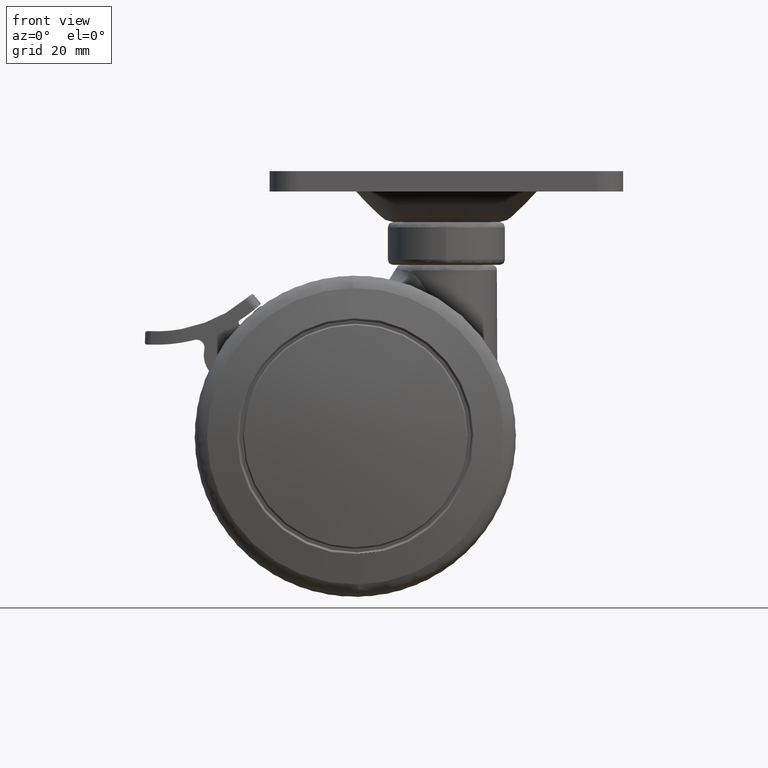
[diagram: clean part render]
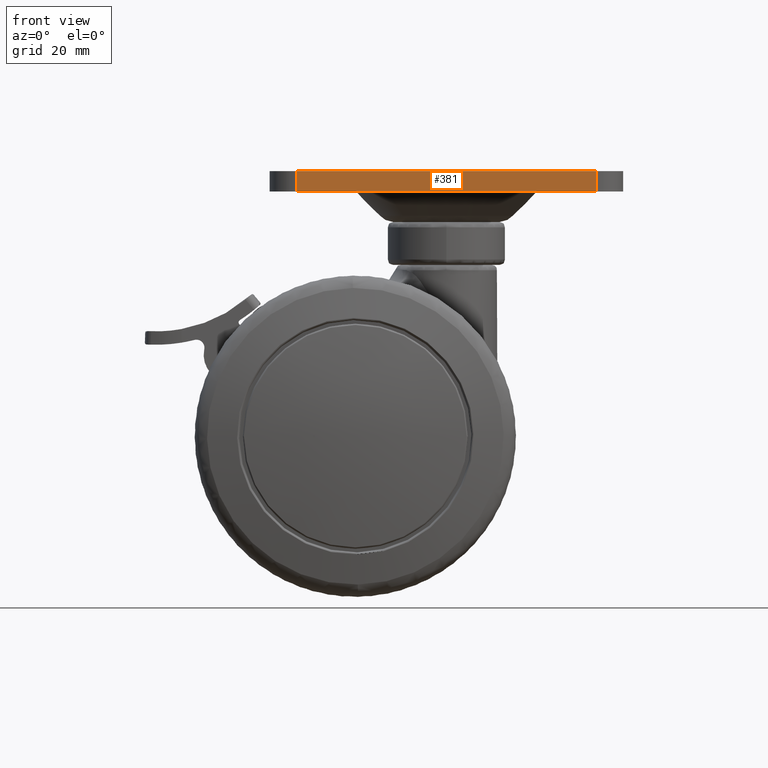
[diagram: same view with one face highlighted and labeled with its STEP entity id]
A machine part, front view. The second image highlights one B-rep face of the part: STEP entity #381.
In plain terms, the highlighted planar face has unit normal (0, 1, -0).
Its self-contained STEP definition (entity closure, byte-faithful):
#381=ADVANCED_FACE('',(#2316),#2315,.F.);
#2315=PLANE('',#6979);
#2316=FACE_OUTER_BOUND('',#6980,.T.);
#6976=CARTESIAN_POINT('',(-3.36000000000E+01,-3.80000000000E-01,-3.30000000000E+01));
#6977=DIRECTION('',(1.10433547828E-15,-2.80045621353E-29,1.00000000000E+00));
#6978=DIRECTION('',(1.00000000000E+00,-3.30514048027E-30,-1.10433547828E-15));
#6979=AXIS2_PLACEMENT_3D('',#6976,#6977,#6978);
#6980=EDGE_LOOP('',(#8311,#8312,#8313,#8314));
#8311=ORIENTED_EDGE('',*,*,#8927,.F.);
#8312=ORIENTED_EDGE('',*,*,#8951,.T.);
#8313=ORIENTED_EDGE('',*,*,#8905,.T.);
#8314=ORIENTED_EDGE('',*,*,#8952,.T.);
#8905=EDGE_CURVE('',#11885,#11886,#11887,.T.);
#8927=EDGE_CURVE('',#12033,#12040,#12041,.T.);
#8951=EDGE_CURVE('',#12033,#11885,#12201,.T.);
#8952=EDGE_CURVE('',#11886,#12040,#12207,.T.);
#11885=VERTEX_POINT('',#14919);
#11886=VERTEX_POINT('',#14920);
#11887=LINE('',#14921,#14922);
#12033=VERTEX_POINT('',#15018);
#12040=VERTEX_POINT('',#15023);
#12041=LINE('',#15024,#15025);
#12201=LINE('',#15125,#15126);
#12207=LINE('',#15128,#15129);
#14919=CARTESIAN_POINT('',(2.80000000000E+01,-8.32667268469E-14,-3.30000000000E+01));
#14920=CARTESIAN_POINT('',(-2.80000000000E+01,-8.32667268469E-14,-3.30000000000E+01));
#14921=CARTESIAN_POINT('',(2.80000000000E+01,-8.32667268469E-14,-3.30000000000E+01));
#14922=VECTOR('',#14923,5.60000000000E+01);
#14923=DIRECTION('',(-1.00000000000E+00,0.00000000000E+00,1.26882631386E-16));
#15018=CARTESIAN_POINT('',(2.80000000000E+01,3.80000000000E+00,-3.30000000000E+01));
#15023=CARTESIAN_POINT('',(-2.80000000000E+01,3.80000000000E+00,-3.30000000000E+01));
#15024=CARTESIAN_POINT('',(2.80000000000E+01,3.80000000000E+00,-3.30000000000E+01));
#15025=VECTOR('',#15026,5.60000000000E+01);
#15026=DIRECTION('',(-1.00000000000E+00,0.00000000000E+00,1.26882631386E-16));
#15125=CARTESIAN_POINT('',(2.80000000000E+01,3.80000000000E+00,-3.30000000000E+01));
#15126=VECTOR('',#15127,3.80000000000E+00);
#15127=DIRECTION('',(0.00000000000E+00,-1.00000000000E+00,0.00000000000E+00));
#15128=CARTESIAN_POINT('',(-2.80000000000E+01,-8.32667268469E-14,-3.30000000000E+01));
#15129=VECTOR('',#15130,3.80000000000E+00);
#15130=DIRECTION('',(0.00000000000E+00,1.00000000000E+00,0.00000000000E+00));